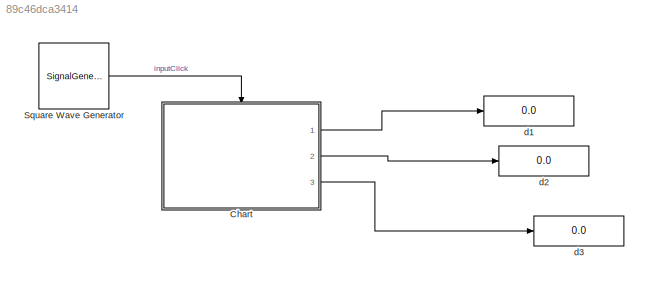
MODEL slx_89c46dca3414
KIND model
CONFIG AbsTol = auto
CONFIG EnableMultiTasking = off
CONFIG FixedStep = auto
CONFIG MaxStep = auto
CONFIG MinStep = auto
CONFIG RelTol = 1e-3
CONFIG SampleTimeConstraint = Unconstrained
CONFIG Solver = VariableStepAuto
CONFIG SolverName = VariableStepAuto
CONFIG StartTime = 0.0
CONFIG StopTime = inf
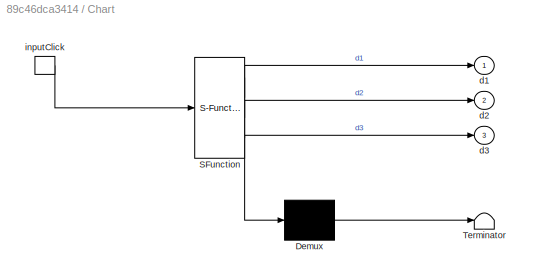
BLOCK [SubSystem] Chart
  ErrorFcn = Stateflow.Translate.translate
  PermitHierarchicalResolution = ExplicitOnly
  Ports = [0, 3, 0, 1]
  RequestExecContextInheritance = off
  SFBlockType = Chart
  TreatAsAtomicUnit = on
BLOCK [Demux] Chart/ Demux 
  Outputs = 1
  Ports = [1, 1]
BLOCK [S-Function] Chart/ SFunction 
  EnableBusSupport = on
  FunctionName = sf_sfun
  PortCounts = [1 4]
  Ports = [1, 4]
  SFcnIsStateOwnerBlock = off
  SFunctionDeploymentMode = off
  Tag = Stateflow S-Function 3
BLOCK [Terminator] Chart/ Terminator 
BLOCK [Outport] Chart/d1
BLOCK [Outport] Chart/d2
  Port = 2
BLOCK [Outport] Chart/d3
  Port = 3
BLOCK [TriggerPort] Chart/inputClick
  Ports = [0, 1]
  ShowOutputPort = on
  StatesWhenEnabling = held
  TriggerType = either
  VariantControl = (inherit)
BLOCK [SignalGenerator] Square Wave Generator
  Ports = [0, 1]
  Units = rad/sec
  WaveForm = square
BLOCK [Display] d1
  Decimation = 1
  Ports = [1]
BLOCK [Display] d2
  Decimation = 1
  Ports = [1]
BLOCK [Display] d3
  Decimation = 1
  Ports = [1]
LINE Chart:1 -> d1:1
LINE Chart:2 -> d2:1
LINE Chart:3 -> d3:1
LINE Square Wave Generator:1 -> Chart:trigger
CHART Chart states=18 transitions=18
  STATE_LABEL 'digit3'
  STATE_LABEL 'one\nen: d3 = 1;'
  STATE_LABEL 'two\nen: d3 = 2;'
  STATE_LABEL 'zero\nen: d3 = 0;'
  STATE_LABEL 'four\nen:d3=4;'
  STATE_LABEL 'three\nen:d3=3;'
  STATE_LABEL 'inc3'
  STATE_LABEL 'inc3'
  STATE_LABEL 'inc3'
  STATE_LABEL 'inc3'
  STATE_LABEL 'inc3'
  STATE_LABEL 'one\nen: d3 = 1;'
  STATE_LABEL 'two\nen: d3 = 2;'
  STATE_LABEL 'zero\nen: d3 = 0;'
  STATE_LABEL 'four\nen:d3=4;'
  STATE_LABEL 'three\nen:d3=3;'
  STATE_LABEL 'digit2'
  STATE_LABEL 'one\nen: d2 = 1;'
  STATE_LABEL 'two\nen: d2 = 2;'
  STATE_LABEL 'zero\nen: d2 = 0;'
  STATE_LABEL 'four\nen:d2=4;'
  STATE_LABEL 'three\nen:d2=3;'
  STATE_LABEL 'inc2'
  STATE_LABEL 'inc2'
  STATE_LABEL 'inc2{digit3.inc3;}'
  STATE_LABEL 'inc2'
  STATE_LABEL 'inc2'
  STATE_LABEL 'one\nen: d2 = 1;'
  STATE_LABEL 'two\nen: d2 = 2;'
  STATE_LABEL 'zero\nen: d2 = 0;'
  STATE_LABEL 'four\nen:d2=4;'
  STATE_LABEL 'three\nen:d2=3;'
  STATE_LABEL 'digit1'
  STATE_LABEL 'one\nen: d1 = 1;'
  STATE_LABEL 'two\nen: d1 = 2;'
  STATE_LABEL 'zero\nen: d1 = 0;'
  STATE_LABEL 'three\nen:d1=3;'
  STATE_LABEL 'four\nen:d1=4;'
  STATE_LABEL 'inputClick'
  STATE_LABEL 'inputClick'
CHART  states=0 transitions=0
